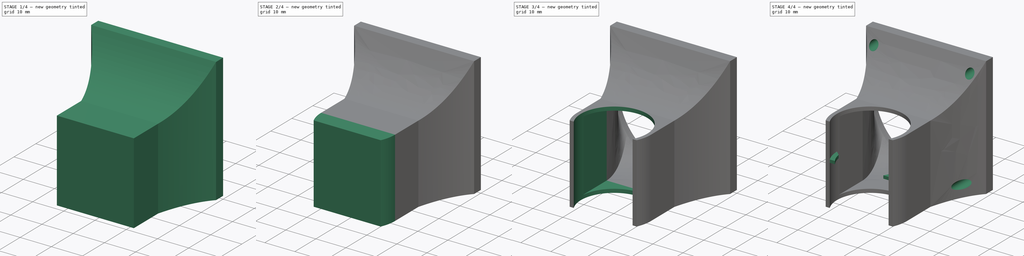
[diagram: build sequence overview — one tinted view per stage of 4, left to right]
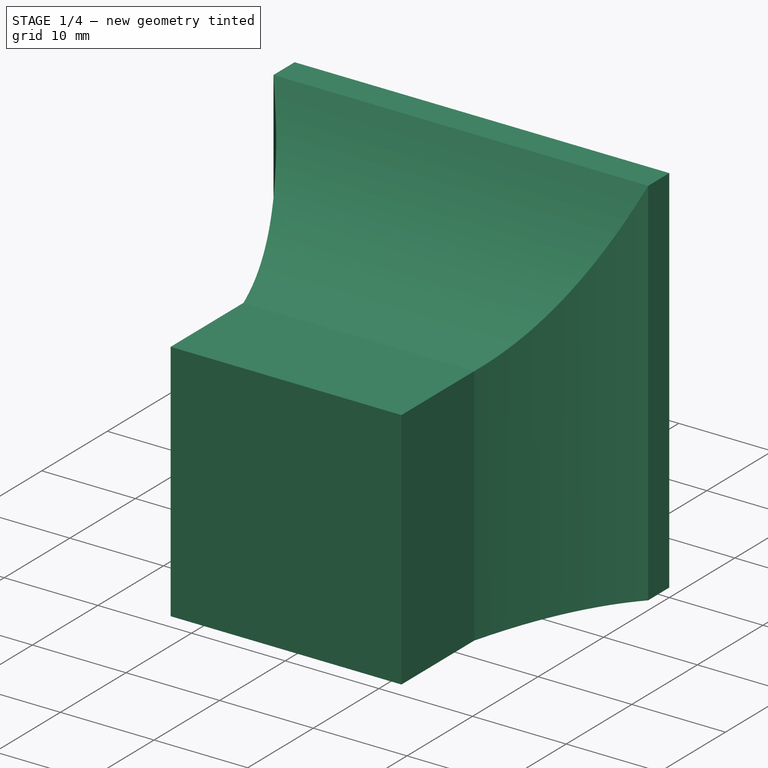
[diagram: stage 1 of 4 — iso view after this stage's code; geometry added in this stage tinted green]
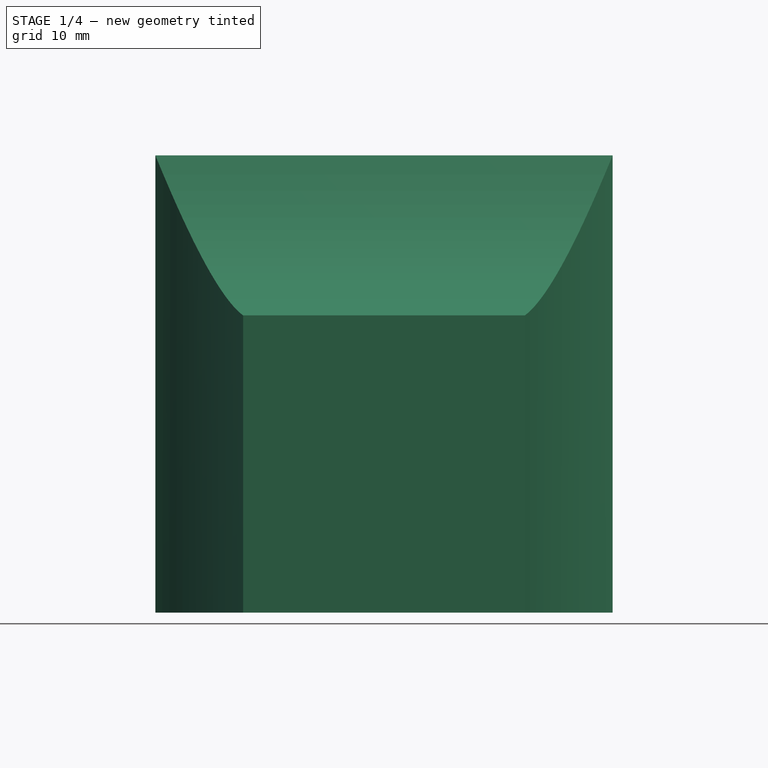
[diagram: stage 1 of 4 — front view after this stage's code; geometry added in this stage tinted green]
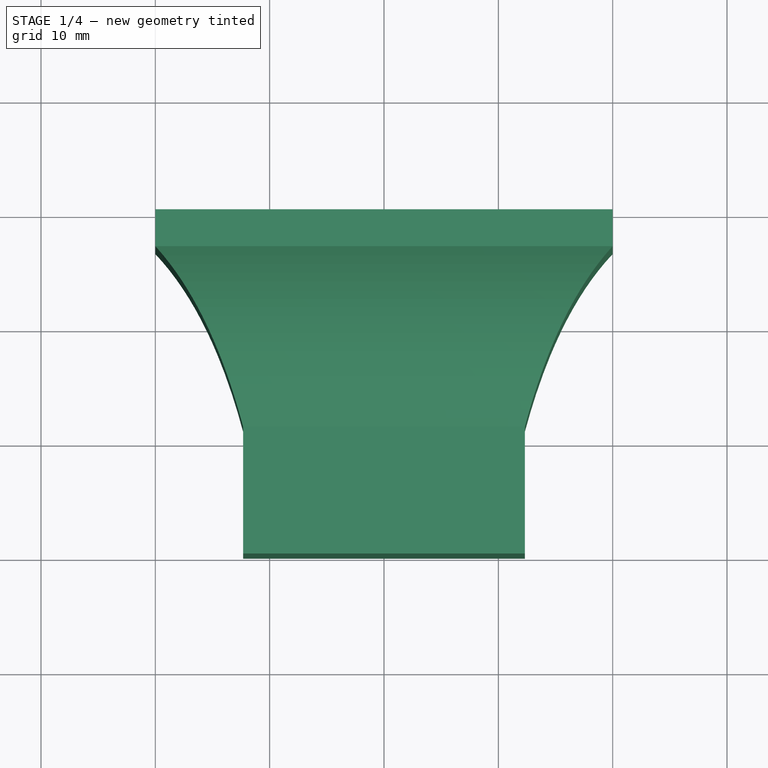
[diagram: stage 1 of 4 — top view after this stage's code; geometry added in this stage tinted green]
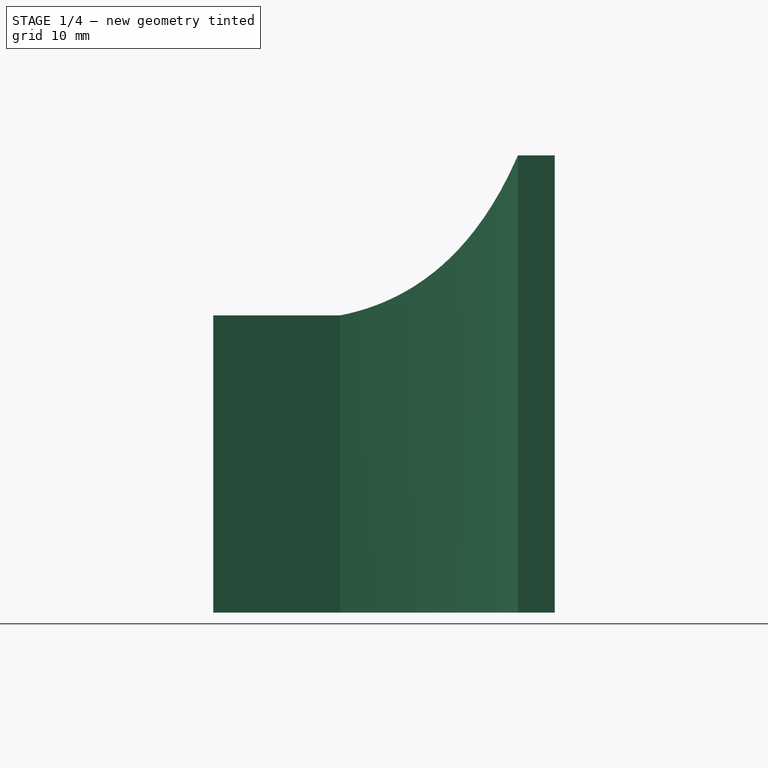
[diagram: stage 1 of 4 — right view after this stage's code; geometry added in this stage tinted green]
FCSTD DOCUMENT  (FreeCAD 0.17R13541 (Git))
Label: V6FanDuct1
License: All rights reserved
LicenseURL: http://en.wikipedia.org/wiki/All_rights_reserved
objects: Sketcher::SketchObject×15, PartDesign::Pad×4, PartDesign::Pocket×4, Spreadsheet::Sheet×1, PartDesign::AdditiveLoft×1, PartDesign::SubtractiveLoft×1, PartDesign::Chamfer×1, PartDesign::Body×1, App::Part×1
note: 37 computed .brp shape members not serialized (recipe doc carries the construction recipe); baked Part::Feature solids carry a one-line shape summary decoded from their .brp

FEATURE [Spreadsheet::Sheet] Spreadsheet
  cells = B2=ScrewDistance; C2(ScrewDistance)==32mm; B3=ScrewHoleRadius; C3(ScrewHoleRadius)==1.45mm; B4=InletRadius; C4(InletRadius)==19.300000000000001mm; B5=OuterBox; C5(OuterBox)==40mm; B6=FrameLength; C6(FrameLength)==2mm; B7=MiddleLength; C7(MiddleLength)==10mm; B8=HeatsinkRadius; C8(HeatsinkRadius)==11.1mm; B9=HeatsinkHeight; C9(HeatsinkHeight)==26mm; B10=WallThickness; C10(WallThickness)==1.22mm; B11=HeatSinkAngle; C11(HeatSinkAngle)=230; B12=ExtraLength; C12(ExtraLength)==0mm; B13=HorizontalOffset; C13(HorizontalOffset)==0mm
FEATURE [Sketcher::SketchObject] Sketch  label="OutsideInlet"
  MapMode = 5
  Placement = pos=(0,0,0) rot=(1,0,0;1.5708rad)
  Support = -> [XZ_Plane001]
  expr: Constraints[28] = Spreadsheet.OuterBox
  expr: Constraints[15] = Spreadsheet.ScrewHoleRadius
  expr: Constraints[10] = Spreadsheet.ScrewDistance
  expr: Constraints[34] = Spreadsheet.HorizontalOffset
  expr: Constraints[0] = Spreadsheet.InletRadius
  sketch-geometry (14):
    g0: Circle [constr] CenterX=0 CenterY=0 CenterZ=0 NormalX=0 NormalY=0 NormalZ=1 AngleXU=0 Radius=19.3
    g1: LineSegment [constr] StartX=-16 StartY=16 StartZ=0 EndX=16 EndY=16 EndZ=0
    g2: LineSegment [constr] StartX=16 StartY=16 StartZ=0 EndX=16 EndY=-16 EndZ=0
    g3: LineSegment [constr] StartX=16 StartY=-16 StartZ=0 EndX=-16 EndY=-16 EndZ=0
    g4: LineSegment [constr] StartX=-16 StartY=-16 StartZ=0 EndX=-16 EndY=16 EndZ=0
    g5: Circle [constr] CenterX=-16 CenterY=16 CenterZ=0 NormalX=0 NormalY=0 NormalZ=1 AngleXU=0 Radius=1.45
    g6: Circle [constr] CenterX=16 CenterY=16 CenterZ=0 NormalX=0 NormalY=0 NormalZ=1 AngleXU=0 Radius=1.45
    g7: Circle [constr] CenterX=16 CenterY=-16 CenterZ=0 NormalX=0 NormalY=0 NormalZ=1 AngleXU=0 Radius=1.45
    g8: Circle [constr] CenterX=-16 CenterY=-16 CenterZ=0 NormalX=0 NormalY=0 NormalZ=1 AngleXU=0 Radius=1.45
    g9: LineSegment StartX=-20 StartY=20 StartZ=0 EndX=20 EndY=20 EndZ=0
    g10: LineSegment StartX=20 StartY=20 StartZ=0 EndX=20 EndY=-20 EndZ=0
    g11: LineSegment StartX=20 StartY=-20 StartZ=0 EndX=-20 EndY=-20 EndZ=0
    g12: LineSegment StartX=-20 StartY=-20 StartZ=0 EndX=-20 EndY=20 EndZ=0
    g13: GeomPoint X=0 Y=0 Z=0
  constraints (35):
    c: Radius(g0) = 19.3
    c: Coincident(g1,g2)
    c: Coincident(g2,g3)
    c: Coincident(g3,g4)
    c: Coincident(g4,g1)
    c: Horizontal(g1)
    c: Horizontal(g3)
    c: Vertical(g2)
    c: Vertical(g4)
    c: Equal(g4,g3)
    c: DistanceX(g3,g3) = 32
    c: Coincident(g5,g1)
    c: Coincident(g6,g1)
    c: Coincident(g7,g2)
    c: Coincident(g8,g3)
    c: Radius(g5) = 1.45
    c: Equal(g5,g6)
    c: Equal(g6,g7)
    c: Equal(g7,g8)
    c: Coincident(g9,g10)
    c: Coincident(g10,g11)
    c: Coincident(g11,g12)
    c: Coincident(g12,g9)
    c: Horizontal(g9)
    c: Horizontal(g11)
    c: Vertical(g10)
    c: Vertical(g12)
    c: Equal(g11,g12)
    c: DistanceX(g11,g11) = 40
    c: DistanceY(g12,g12) = 40  'Height'
    c: Symmetric(g3,g1,g13)
    c: Symmetric(g11,g9,g13)
    c: Coincident(g0,g13)
    c: PointOnObject(g0,g-1)
    c: DistanceX(g-1,g0) = 0
FEATURE [Sketcher::SketchObject] Sketch001  label="OutsideMidle1"
  AttachmentOffset = pos=(0,0,3.22) rot=(0,0,1;0rad)
  MapMode = 5
  Placement = pos=(0,-3.22,0) rot=(1,0,0;1.5708rad)
  Support = -> [XZ_Plane001]
  expr: Constraints[28] = Spreadsheet.OuterBox
  expr: AttachmentOffset.Base.z = OutsideInlet.AttachmentOffset.Base.z + OutsideInlet_.Length
  expr: Constraints[33] = Spreadsheet.HorizontalOffset
  expr: Constraints[15] = Spreadsheet.ScrewHoleRadius
  expr: Constraints[10] = Spreadsheet.ScrewDistance
  expr: Constraints[0] = Spreadsheet.InletRadius
  sketch-geometry (14):
    g0: Circle [constr] CenterX=0 CenterY=0 CenterZ=0 NormalX=0 NormalY=0 NormalZ=1 AngleXU=0 Radius=19.3
    g1: LineSegment [constr] StartX=-16 StartY=16 StartZ=0 EndX=16 EndY=16 EndZ=0
    g2: LineSegment [constr] StartX=16 StartY=16 StartZ=0 EndX=16 EndY=-16 EndZ=0
    g3: LineSegment [constr] StartX=16 StartY=-16 StartZ=0 EndX=-16 EndY=-16 EndZ=0
    g4: LineSegment [constr] StartX=-16 StartY=-16 StartZ=0 EndX=-16 EndY=16 EndZ=0
    g5: Circle [constr] CenterX=-16 CenterY=16 CenterZ=0 NormalX=0 NormalY=0 NormalZ=1 AngleXU=0 Radius=1.45
    g6: Circle [constr] CenterX=16 CenterY=16 CenterZ=0 NormalX=0 NormalY=0 NormalZ=1 AngleXU=0 Radius=1.45
    g7: Circle [constr] CenterX=16 CenterY=-16 CenterZ=0 NormalX=0 NormalY=0 NormalZ=1 AngleXU=0 Radius=1.45
    g8: Circle [constr] CenterX=-16 CenterY=-16 CenterZ=0 NormalX=0 NormalY=0 NormalZ=1 AngleXU=0 Radius=1.45
    g9: LineSegment StartX=-20 StartY=20 StartZ=0 EndX=20 EndY=20 EndZ=0
    g10: LineSegment StartX=20 StartY=20 StartZ=0 EndX=20 EndY=-20 EndZ=0
    g11: LineSegment StartX=20 StartY=-20 StartZ=0 EndX=-20 EndY=-20 EndZ=0
    g12: LineSegment StartX=-20 StartY=-20 StartZ=0 EndX=-20 EndY=20 EndZ=0
    g13: GeomPoint X=0 Y=0 Z=0
  constraints (34):
    c: Radius(g0) = 19.3
    c: Coincident(g1,g2)
    c: Coincident(g2,g3)
    c: Coincident(g3,g4)
    c: Coincident(g4,g1)
    c: Horizontal(g1)
    c: Horizontal(g3)
    c: Vertical(g2)
    c: Vertical(g4)
    c: Equal(g4,g3)
    c: DistanceX(g3,g3) = 32
    c: Coincident(g5,g1)
    c: Coincident(g6,g1)
    c: Coincident(g7,g2)
    c: Coincident(g8,g3)
    c: Radius(g5) = 1.45
    c: Equal(g5,g6)
    c: Equal(g6,g7)
    c: Equal(g7,g8)
    c: Coincident(g9,g10)
    c: Coincident(g10,g11)
    c: Coincident(g11,g12)
    c: Coincident(g12,g9)
    c: Horizontal(g9)
    c: Horizontal(g11)
    c: Vertical(g10)
    c: Vertical(g12)
    c: Equal(g11,g12)
    c: DistanceX(g11,g11) = 40
    c: Symmetric(g3,g1,g13)
    c: Symmetric(g11,g9,g13)
    c: Coincident(g13,g0)
    c: PointOnObject(g0,g-1)
    c: DistanceX(g-1,g0) = 0
FEATURE [Sketcher::SketchObject] Sketch002  label="OutsideMidle2"
  AttachmentOffset = pos=(0,0,13.22) rot=(0,0,1;0rad)
  MapMode = 5
  Placement = pos=(0,-13.22,-1e-12) rot=(1,0,0;1.5708rad)
  Support = -> [XZ_Plane001]
  expr: Constraints[12] = (Sketch.Constraints.Height - Constraints.Height) / 2
  expr: Constraints.Height = Spreadsheet.HeatsinkHeight + 2mm
  expr: Constraints.Width = (Spreadsheet.HeatsinkRadius + 3mm) * 2
  expr: AttachmentOffset.Base.z = OutsideMidle1.AttachmentOffset.Base.z + Spreadsheet.MiddleLength
  sketch-geometry (5):
    g0: LineSegment StartX=-14.1 StartY=8 StartZ=0 EndX=14.1 EndY=8 EndZ=0
    g1: LineSegment StartX=14.1 StartY=8 StartZ=0 EndX=14.1 EndY=-20 EndZ=0
    g2: LineSegment StartX=14.1 StartY=-20 StartZ=0 EndX=-14.1 EndY=-20 EndZ=0
    g3: LineSegment StartX=-14.1 StartY=-20 StartZ=0 EndX=-14.1 EndY=8 EndZ=0
    g4: GeomPoint X=14.1 Y=-6 Z=0
  constraints (13):
    c: Coincident(g0,g1)
    c: Coincident(g1,g2)
    c: Coincident(g2,g3)
    c: Coincident(g3,g0)
    c: Horizontal(g0)
    c: Horizontal(g2)
    c: Vertical(g1)
    c: Vertical(g3)
    c: Symmetric(g0,g0,g-2)
    c: DistanceX(g2,g2) = 28.2  'Width'
    c: DistanceY(g3,g3) = 28  'Height'
    c: Symmetric(g0,g1,g4)
    c: DistanceY(g4,g-1) = 6
FEATURE [Sketcher::SketchObject] Sketch004  label="OutsideHeatsink"
  AttachmentOffset = pos=(0,0,-20) rot=(0,0,1;0rad)
  MapMode = 5
  Placement = pos=(0,0,-20) rot=(0,0,1;0rad)
  Support = -> [XY_Plane001]
  expr: Constraints[0] = Spreadsheet.HeatSinkAngle
  expr: Constraints.Offset = OutsideOutlet.AttachmentOffset.Base.z + OutsideOutlet_.Length
  expr: Constraints.R = Spreadsheet.HeatsinkRadius + Spreadsheet.WallThickness
  expr: AttachmentOffset.Base.z = -Sketch.Constraints.Height / 2
  sketch-geometry (2):
    g0: ArcOfCircle CenterX=0 CenterY=-29.87 CenterZ=0 NormalX=0 NormalY=0 NormalZ=1 AngleXU=0 Radius=12.32 StartAngle=5.84685 EndAngle=9.86111
    g1: LineSegment StartX=-11.1657 StartY=-35.0767 StartZ=0 EndX=11.1657 EndY=-35.0767 EndZ=0
  constraints (7):
    c: Angle(g0) = 4.01426
    c: Radius(g0) = 12.32  'R'
    c: DistanceY(g0,g-1) = 29.87  'Offset'
    c: Coincident(g1,g0)
    c: Coincident(g1,g0)
    c: Horizontal(g1)
    c: PointOnObject(g0,g-2)
FEATURE [Sketcher::SketchObject] Sketch005  label="InsideMidle1"
  AttachmentOffset = pos=(0,0,2) rot=(0,0,1;0rad)
  MapMode = 5
  Placement = pos=(0,-2,0) rot=(1,0,0;1.5708rad)
  Support = -> [XZ_Plane001]
  expr: Constraints[57] = Spreadsheet.HorizontalOffset
  expr: Constraints.R = Sketch006.Constraints.R
  expr: Constraints[9] = Spreadsheet.ScrewDistance
  expr: Constraints[27] = Spreadsheet.OuterBox
  expr: Constraints[14] = Spreadsheet.ScrewHoleRadius
  expr: AttachmentOffset.Base.z = InsideInlet.AttachmentOffset.Base.z + InsideInlet_.Length
  sketch-geometry (23):
    g0: LineSegment [constr] StartX=-16 StartY=16 StartZ=0 EndX=16 EndY=16 EndZ=0
    g1: LineSegment [constr] StartX=16 StartY=16 StartZ=0 EndX=16 EndY=-16 EndZ=0
    g2: LineSegment [constr] StartX=16 StartY=-16 StartZ=0 EndX=-16 EndY=-16 EndZ=0
    g3: LineSegment [constr] StartX=-16 StartY=-16 StartZ=0 EndX=-16 EndY=16 EndZ=0
    g4: Circle [constr] CenterX=-16 CenterY=16 CenterZ=0 NormalX=0 NormalY=0 NormalZ=1 AngleXU=0 Radius=1.45
    g5: Circle [constr] CenterX=16 CenterY=16 CenterZ=0 NormalX=0 NormalY=0 NormalZ=1 AngleXU=0 Radius=1.45
    g6: Circle [constr] CenterX=16 CenterY=-16 CenterZ=0 NormalX=0 NormalY=0 NormalZ=1 AngleXU=0 Radius=1.45
    g7: Circle [constr] CenterX=-16 CenterY=-16 CenterZ=0 NormalX=0 NormalY=0 NormalZ=1 AngleXU=0 Radius=1.45
    g8: LineSegment [constr] StartX=-20 StartY=20 StartZ=0 EndX=20 EndY=20 EndZ=0
    g9: LineSegment [constr] StartX=20 StartY=20 StartZ=0 EndX=20 EndY=-20 EndZ=0
    g10: LineSegment [constr] StartX=20 StartY=-20 StartZ=0 EndX=-20 EndY=-20 EndZ=0
    g11: LineSegment [constr] StartX=-20 StartY=-20 StartZ=0 EndX=-20 EndY=20 EndZ=0
    g12: ArcOfCircle CenterX=0 CenterY=0 CenterZ=0 NormalX=0 NormalY=0 NormalZ=1 AngleXU=0 Radius=19.3 StartAngle=0.654498 EndAngle=2.48709
    g13: ArcOfCircle CenterX=0 CenterY=0 CenterZ=0 NormalX=0 NormalY=0 NormalZ=1 AngleXU=0 Radius=19.3 StartAngle=5.62869 EndAngle=6.93768
    g14: ArcOfCircle CenterX=0 CenterY=0 CenterZ=0 NormalX=0 NormalY=0 NormalZ=1 AngleXU=0 Radius=19.3 StartAngle=3.79609 EndAngle=5.62869
    g15: ArcOfCircle CenterX=0 CenterY=0 CenterZ=0 NormalX=0 NormalY=0 NormalZ=1 AngleXU=0 Radius=19.3 StartAngle=2.48709 EndAngle=3.79609
    g16: LineSegment [constr] StartX=-15.3117 StartY=-11.7491 StartZ=0 EndX=15.3117 EndY=11.7491 EndZ=0
    g17: LineSegment [constr] StartX=-15.3117 StartY=11.7491 StartZ=0 EndX=15.3117 EndY=-11.7491 EndZ=0
    g18: LineSegment [constr] StartX=-15.3117 StartY=11.7491 StartZ=0 EndX=15.3117 EndY=11.7491 EndZ=0
    g19: LineSegment [constr] StartX=-15.3117 StartY=11.7491 StartZ=0 EndX=-15.3117 EndY=-11.7491 EndZ=0
    g20: LineSegment [constr] StartX=-15.3117 StartY=-11.7491 StartZ=0 EndX=15.3117 EndY=-11.7491 EndZ=0
    g21: LineSegment [constr] StartX=15.3117 StartY=-11.7491 StartZ=0 EndX=15.3117 EndY=11.7491 EndZ=0
    g22: GeomPoint X=0 Y=0 Z=0
  constraints (58):
    c: Coincident(g0,g1)
    c: Coincident(g1,g2)
    c: Coincident(g2,g3)
    c: Coincident(g3,g0)
    c: Horizontal(g0)
    c: Horizontal(g2)
    c: Vertical(g1)
    c: Vertical(g3)
    c: Equal(g3,g2)
    c: DistanceX(g2,g2) = 32
    c: Coincident(g4,g0)
    c: Coincident(g5,g0)
    c: Coincident(g6,g1)
    c: Coincident(g7,g2)
    c: Radius(g4) = 1.45
    c: Equal(g4,g5)
    c: Equal(g5,g6)
    c: Equal(g6,g7)
    c: Coincident(g8,g9)
    c: Coincident(g9,g10)
    c: Coincident(g10,g11)
    c: Coincident(g11,g8)
    c: Horizontal(g8)
    c: Horizontal(g10)
    c: Vertical(g9)
    c: Vertical(g11)
    c: Equal(g10,g11)
    c: DistanceX(g10,g10) = 40
    c: DistanceY(g11,g11) = 40  'Height'
    c: Radius(g12) = 19.3  'R'
    c: Coincident(g16,g14)
    c: Coincident(g16,g12)
    c: Coincident(g17,g12)
    c: Coincident(g17,g13)
    c: Coincident(g18,g12)
    c: Coincident(g18,g12)
    c: Horizontal(g18)
    c: Coincident(g12,g13)
    c: Coincident(g12,g14)
    c: Coincident(g12,g15)
    c: Coincident(g12,g15)
    c: Coincident(g14,g15)
    c: Coincident(g13,g14)
    c: Coincident(g12,g13)
    c: Coincident(g19,g12)
    c: Coincident(g19,g14)
    c: Coincident(g20,g14)
    c: Coincident(g20,g13)
    c: Coincident(g21,g13)
    c: Coincident(g21,g12)
    c: Angle(g16,g17) = 1.8326
    c: PointOnObject(g12,g16)
    c: PointOnObject(g12,g17)
    c: Symmetric(g2,g0,g22)
    c: Symmetric(g10,g8,g22)
    c: Coincident(g12,g22)
    c: PointOnObject(g12,g-1)
    c: DistanceX(g-1,g12) = 0
FEATURE [Sketcher::SketchObject] Sketch006  label="InsideInlet"
  MapMode = 5
  Placement = pos=(0,0,0) rot=(1,0,0;1.5708rad)
  Support = -> [XZ_Plane001]
  expr: Constraints[34] = Spreadsheet.HorizontalOffset
  expr: Constraints.R = Spreadsheet.InletRadius
  expr: Constraints[9] = Spreadsheet.ScrewDistance
  expr: Constraints[14] = Spreadsheet.ScrewHoleRadius
  expr: Constraints[27] = Spreadsheet.OuterBox
  sketch-geometry (14):
    g0: LineSegment [constr] StartX=-16 StartY=16 StartZ=0 EndX=16 EndY=16 EndZ=0
    g1: LineSegment [constr] StartX=16 StartY=16 StartZ=0 EndX=16 EndY=-16 EndZ=0
    g2: LineSegment [constr] StartX=16 StartY=-16 StartZ=0 EndX=-16 EndY=-16 EndZ=0
    g3: LineSegment [constr] StartX=-16 StartY=-16 StartZ=0 EndX=-16 EndY=16 EndZ=0
    g4: Circle [constr] CenterX=-16 CenterY=16 CenterZ=0 NormalX=0 NormalY=0 NormalZ=1 AngleXU=0 Radius=1.45
    g5: Circle [constr] CenterX=16 CenterY=16 CenterZ=0 NormalX=0 NormalY=0 NormalZ=1 AngleXU=0 Radius=1.45
    g6: Circle [constr] CenterX=16 CenterY=-16 CenterZ=0 NormalX=0 NormalY=0 NormalZ=1 AngleXU=0 Radius=1.45
    g7: Circle [constr] CenterX=-16 CenterY=-16 CenterZ=0 NormalX=0 NormalY=0 NormalZ=1 AngleXU=0 Radius=1.45
    g8: LineSegment [constr] StartX=-20 StartY=20 StartZ=0 EndX=20 EndY=20 EndZ=0
    g9: LineSegment [constr] StartX=20 StartY=20 StartZ=0 EndX=20 EndY=-20 EndZ=0
    g10: LineSegment [constr] StartX=20 StartY=-20 StartZ=0 EndX=-20 EndY=-20 EndZ=0
    g11: LineSegment [constr] StartX=-20 StartY=-20 StartZ=0 EndX=-20 EndY=20 EndZ=0
    g12: Circle CenterX=0 CenterY=0 CenterZ=0 NormalX=0 NormalY=0 NormalZ=1 AngleXU=0 Radius=19.3
    g13: GeomPoint X=0 Y=0 Z=0
  constraints (35):
    c: Coincident(g0,g1)
    c: Coincident(g1,g2)
    c: Coincident(g2,g3)
    c: Coincident(g3,g0)
    c: Horizontal(g0)
    c: Horizontal(g2)
    c: Vertical(g1)
    c: Vertical(g3)
    c: Equal(g3,g2)
    c: DistanceX(g2,g2) = 32
    c: Coincident(g4,g0)
    c: Coincident(g5,g0)
    c: Coincident(g6,g1)
    c: Coincident(g7,g2)
    c: Radius(g4) = 1.45
    c: Equal(g4,g5)
    c: Equal(g5,g6)
    c: Equal(g6,g7)
    c: Coincident(g8,g9)
    c: Coincident(g9,g10)
    c: Coincident(g10,g11)
    c: Coincident(g11,g8)
    c: Horizontal(g8)
    c: Horizontal(g10)
    c: Vertical(g9)
    c: Vertical(g11)
    c: Equal(g10,g11)
    c: DistanceX(g10,g10) = 40
    c: DistanceY(g11,g11) = 40  'Height'
    c: Radius(g12) = 19.3  'R'
    c: Symmetric(g0,g2,g13)
    c: Symmetric(g10,g8,g13)
    c: Coincident(g12,g13)
    c: PointOnObject(g12,g-1)
    c: DistanceX(g-1,g12) = 0
FEATURE [Sketcher::SketchObject] Sketch007  label="InsideInlet001"
  MapMode = 5
  Placement = pos=(0,0,0) rot=(1,0,0;1.5708rad)
  expr: Constraints[30] = Spreadsheet.OuterBox
  expr: Constraints[17] = Spreadsheet.ScrewHoleRadius
  expr: Constraints[12] = Spreadsheet.ScrewDistance
  expr: Constraints[1] = Spreadsheet.InletRadius
  sketch-geometry (13):
    g0: Circle [constr] CenterX=0 CenterY=0 CenterZ=0 NormalX=0 NormalY=0 NormalZ=1 AngleXU=0 Radius=19.3
    g1: LineSegment [constr] StartX=-16 StartY=16 StartZ=0 EndX=16 EndY=16 EndZ=0
    g2: LineSegment [constr] StartX=16 StartY=16 StartZ=0 EndX=16 EndY=-16 EndZ=0
    g3: LineSegment [constr] StartX=16 StartY=-16 StartZ=0 EndX=-16 EndY=-16 EndZ=0
    g4: LineSegment [constr] StartX=-16 StartY=-16 StartZ=0 EndX=-16 EndY=16 EndZ=0
    g5: Circle [constr] CenterX=-16 CenterY=16 CenterZ=0 NormalX=0 NormalY=0 NormalZ=1 AngleXU=0 Radius=1.45
    g6: Circle [constr] CenterX=16 CenterY=16 CenterZ=0 NormalX=0 NormalY=0 NormalZ=1 AngleXU=0 Radius=1.45
    g7: Circle [constr] CenterX=16 CenterY=-16 CenterZ=0 NormalX=0 NormalY=0 NormalZ=1 AngleXU=0 Radius=1.45
    g8: Circle [constr] CenterX=-16 CenterY=-16 CenterZ=0 NormalX=0 NormalY=0 NormalZ=1 AngleXU=0 Radius=1.45
    g9: LineSegment StartX=-20 StartY=20 StartZ=0 EndX=20 EndY=20 EndZ=0
    g10: LineSegment StartX=20 StartY=20 StartZ=0 EndX=20 EndY=-20 EndZ=0
    g11: LineSegment StartX=20 StartY=-20 StartZ=0 EndX=-20 EndY=-20 EndZ=0
    g12: LineSegment StartX=-20 StartY=-20 StartZ=0 EndX=-20 EndY=20 EndZ=0
  constraints (33):
    c: Coincident(g0,g-1)
    c: Radius(g0) = 19.3
    c: Coincident(g1,g2)
    c: Coincident(g2,g3)
    c: Coincident(g3,g4)
    c: Coincident(g4,g1)
    c: Horizontal(g1)
    c: Horizontal(g3)
    c: Vertical(g2)
    c: Vertical(g4)
    c: Equal(g4,g3)
    c: Symmetric(g3,g1,g-1)
    c: DistanceX(g3,g3) = 32
    c: Coincident(g5,g1)
    c: Coincident(g6,g1)
    c: Coincident(g7,g2)
    c: Coincident(g8,g3)
    c: Radius(g5) = 1.45
    c: Equal(g5,g6)
    c: Equal(g6,g7)
    c: Equal(g7,g8)
    c: Coincident(g9,g10)
    c: Coincident(g10,g11)
    c: Coincident(g11,g12)
    c: Coincident(g12,g9)
    c: Horizontal(g9)
    c: Horizontal(g11)
    c: Vertical(g10)
    c: Vertical(g12)
    c: Equal(g11,g12)
    c: DistanceX(g11,g11) = 40
    c: Symmetric(g11,g9,g-1)
    c: DistanceY(g12,g12) = 40  'Height'
FEATURE [Sketcher::SketchObject] Sketch009  label="InsideMidle4"
  AttachmentOffset = pos=(0,0,17.55) rot=(0,0,1;0rad)
  MapMode = 5
  Placement = pos=(0,-17.55,-2e-12) rot=(1,0,0;1.5708rad)
  Support = -> [XZ_Plane001]
  expr: Constraints[12] = Spreadsheet.HeatsinkRadius * 2
  expr: Constraints[11] = (Sketch.Constraints.Height - Constraints.Height) / 2 - Spreadsheet.WallThickness
  expr: Constraints.Height = Spreadsheet.HeatsinkHeight - Spreadsheet.WallThickness * 2
  expr: AttachmentOffset.Base.z = InsideMidle3.AttachmentOffset.Base.z + Spreadsheet.HeatsinkRadius / 2
  sketch-geometry (5):
    g0: LineSegment StartX=-11.1 StartY=4.78 StartZ=0 EndX=11.1 EndY=4.78 EndZ=0
    g1: LineSegment StartX=11.1 StartY=4.78 StartZ=0 EndX=11.1 EndY=-18.78 EndZ=0
    g2: LineSegment StartX=11.1 StartY=-18.78 StartZ=0 EndX=-11.1 EndY=-18.78 EndZ=0
    g3: LineSegment StartX=-11.1 StartY=-18.78 StartZ=0 EndX=-11.1 EndY=4.78 EndZ=0
    g4: GeomPoint X=11.1 Y=-7 Z=0
  constraints (13):
    c: Coincident(g0,g1)
    c: Coincident(g1,g2)
    c: Coincident(g2,g3)
    c: Coincident(g3,g0)
    c: Horizontal(g0)
    c: Horizontal(g2)
    c: Vertical(g1)
    c: Vertical(g3)
    c: Symmetric(g0,g0,g-2)
    c: DistanceY(g3,g3) = 23.56  'Height'
    c: Symmetric(g0,g1,g4)
    c: DistanceY(g4,g-1) = 7
    c: DistanceX(g2,g2) = 22.2
FEATURE [Sketcher::SketchObject] Sketch010  label="InsideHeatsink"
  AttachmentOffset = pos=(0,0,-20) rot=(0,0,1;0rad)
  MapMode = 5
  Placement = pos=(0,0,-20) rot=(0,0,1;0rad)
  Support = -> [XY_Plane001]
  expr: Constraints[1] = OutsideHeatsink.Constraints.Offset
  expr: Constraints[0] = Spreadsheet.HeatsinkRadius
  expr: AttachmentOffset.Base.z = -Sketch.Constraints.Height / 2
  sketch-geometry (1):
    g0: Circle CenterX=0 CenterY=-29.87 CenterZ=0 NormalX=0 NormalY=0 NormalZ=1 AngleXU=0 Radius=11.1
  constraints (3):
    c: Radius(g0) = 11.1
    c: DistanceY(g0,g-1) = 29.87
    c: PointOnObject(g0,g-2)
FEATURE [Sketcher::SketchObject] Sketch011  label="ScrewHoles"
  MapMode = 5
  Placement = pos=(0,0,0) rot=(1,0,0;1.5708rad)
  Support = -> [XZ_Plane001]
  expr: Constraints[28] = Spreadsheet.OuterBox
  expr: Constraints[15] = Spreadsheet.ScrewHoleRadius
  expr: Constraints[10] = Spreadsheet.ScrewDistance
  expr: Constraints[34] = Spreadsheet.HorizontalOffset
  expr: Constraints[0] = Spreadsheet.InletRadius
  sketch-geometry (14):
    g0: Circle [constr] CenterX=0 CenterY=0 CenterZ=0 NormalX=0 NormalY=0 NormalZ=1 AngleXU=0 Radius=19.3
    g1: LineSegment [constr] StartX=-16 StartY=16 StartZ=0 EndX=16 EndY=16 EndZ=0
    g2: LineSegment [constr] StartX=16 StartY=16 StartZ=0 EndX=16 EndY=-16 EndZ=0
    g3: LineSegment [constr] StartX=16 StartY=-16 StartZ=0 EndX=-16 EndY=-16 EndZ=0
    g4: LineSegment [constr] StartX=-16 StartY=-16 StartZ=0 EndX=-16 EndY=16 EndZ=0
    g5: Circle CenterX=-16 CenterY=16 CenterZ=0 NormalX=0 NormalY=0 NormalZ=1 AngleXU=0 Radius=1.45
    g6: Circle CenterX=16 CenterY=16 CenterZ=0 NormalX=0 NormalY=0 NormalZ=1 AngleXU=0 Radius=1.45
    g7: Circle CenterX=16 CenterY=-16 CenterZ=0 NormalX=0 NormalY=0 NormalZ=1 AngleXU=0 Radius=1.45
    g8: Circle CenterX=-16 CenterY=-16 CenterZ=0 NormalX=0 NormalY=0 NormalZ=1 AngleXU=0 Radius=1.45
    g9: LineSegment [constr] StartX=-20 StartY=20 StartZ=0 EndX=20 EndY=20 EndZ=0
    g10: LineSegment [constr] StartX=20 StartY=20 StartZ=0 EndX=20 EndY=-20 EndZ=0
    g11: LineSegment [constr] StartX=20 StartY=-20 StartZ=0 EndX=-20 EndY=-20 EndZ=0
    g12: LineSegment [constr] StartX=-20 StartY=-20 StartZ=0 EndX=-20 EndY=20 EndZ=0
    g13: GeomPoint X=0 Y=0 Z=0
  constraints (35):
    c: Radius(g0) = 19.3
    c: Coincident(g1,g2)
    c: Coincident(g2,g3)
    c: Coincident(g3,g4)
    c: Coincident(g4,g1)
    c: Horizontal(g1)
    c: Horizontal(g3)
    c: Vertical(g2)
    c: Vertical(g4)
    c: Equal(g4,g3)
    c: DistanceX(g3,g3) = 32
    c: Coincident(g5,g1)
    c: Coincident(g6,g1)
    c: Coincident(g7,g2)
    c: Coincident(g8,g3)
    c: Radius(g5) = 1.45
    c: Equal(g5,g6)
    c: Equal(g6,g7)
    c: Equal(g7,g8)
    c: Coincident(g9,g10)
    c: Coincident(g10,g11)
    c: Coincident(g11,g12)
    c: Coincident(g12,g9)
    c: Horizontal(g9)
    c: Horizontal(g11)
    c: Vertical(g10)
    c: Vertical(g12)
    c: Equal(g11,g12)
    c: DistanceX(g11,g11) = 40
    c: DistanceY(g12,g12) = 40  'Height'
    c: Symmetric(g1,g3,g13)
    c: Symmetric(g9,g11,g13)
    c: Coincident(g0,g13)
    c: PointOnObject(g0,g-1)
    c: DistanceX(g-1,g0) = 0
FEATURE [Sketcher::SketchObject] Sketch012  label="Grooves"
  AttachmentOffset = pos=(0,0,-6.4) rot=(0,0,1;0rad)
  MapMode = 5
  Placement = pos=(0,0,-6.4) rot=(0,0,1;0rad)
  Support = -> [XY_Plane001]
  expr: Constraints[25] = 360 - Spreadsheet.HeatSinkAngle
  expr: Constraints[4] = Constraints.R - 1.6000000000000001mm
  expr: Constraints[24] = OutsideHeatsink.Constraints.R
  expr: AttachmentOffset.Base.z = OutsideHeatsink.AttachmentOffset.Base.z + OutsideHeatsink_.Length / 2 + 0.59999999999999998mm
  expr: Constraints[1] = OutsideHeatsink.Constraints.Offset
  expr: Constraints.R = Spreadsheet.HeatsinkRadius + 0.10000000000000001mm
  sketch-geometry (11):
    g0: ArcOfCircle CenterX=0 CenterY=-29.87 CenterZ=0 NormalX=0 NormalY=0 NormalZ=1 AngleXU=0 Radius=11.2 StartAngle=3.14159 EndAngle=3.62509
    g1: ArcOfCircle CenterX=0 CenterY=-29.87 CenterZ=0 NormalX=0 NormalY=0 NormalZ=1 AngleXU=0 Radius=9.6 StartAngle=3.14159 EndAngle=3.71484
    g2: LineSegment StartX=-9.91618 StartY=-35.0767 StartZ=0 EndX=-8.0654 EndY=-35.0767 EndZ=0
    g3: LineSegment StartX=8.0654 StartY=-35.0767 StartZ=0 EndX=9.91618 EndY=-35.0767 EndZ=0
    g4: LineSegment [constr] StartX=-9.6 StartY=-29.87 StartZ=0 EndX=9.6 EndY=-29.87 EndZ=0
    g5: LineSegment StartX=-11.2 StartY=-29.87 StartZ=0 EndX=-9.6 EndY=-29.87 EndZ=0
    g6: ArcOfCircle CenterX=0 CenterY=-29.87 CenterZ=0 NormalX=0 NormalY=0 NormalZ=1 AngleXU=0 Radius=9.6 StartAngle=5.70994 EndAngle=6.28319
    g7: LineSegment StartX=9.6 StartY=-29.87 StartZ=0 EndX=11.2 EndY=-29.87 EndZ=0
    g8: ArcOfCircle CenterX=0 CenterY=-29.87 CenterZ=0 NormalX=0 NormalY=0 NormalZ=1 AngleXU=0 Radius=11.2 StartAngle=5.79969 EndAngle=6.28319
    g9: ArcOfCircle [constr] CenterX=0 CenterY=-29.87 CenterZ=0 NormalX=0 NormalY=0 NormalZ=1 AngleXU=0 Radius=12.32 StartAngle=3.57792 EndAngle=5.84685
    g10: LineSegment [constr] StartX=-11.1657 StartY=-35.0767 StartZ=0 EndX=11.1657 EndY=-35.0767 EndZ=0
  constraints (33):
    c: Radius(g0) = 11.2  'R'
    c: DistanceY(g0,g-1) = 29.87
    c: PointOnObject(g0,g-2)
    c: Coincident(g1,g0)
    c: Radius(g1) = 9.6
    c: Coincident(g2,g0)
    c: Coincident(g1,g2)
    c: Coincident(g4,g1)
    c: Horizontal(g4)
    c: Symmetric(g1,g4,g0)
    c: Coincident(g5,g0)
    c: Coincident(g5,g1)
    c: Horizontal(g5)
    c: Coincident(g6,g0)
    c: Coincident(g6,g3)
    c: Coincident(g6,g4)
    c: Coincident(g7,g4)
    c: Horizontal(g7)
    c: Coincident(g8,g0)
    c: Coincident(g8,g3)
    c: Coincident(g8,g7)
    c: Equal(g8,g0)
    c: Coincident(g9,g0)
    c: Symmetric(g9,g9,g-2)
    c: Radius(g9) = 12.32
    c: Angle(g9) = 2.26893
    c: Coincident(g10,g9)
    c: Coincident(g10,g9)
    c: Horizontal(g10)
    c: PointOnObject(g0,g10)
    c: PointOnObject(g3,g10)
    c: Horizontal(g2)
    c: Horizontal(g3)
FEATURE [Sketcher::SketchObject] Sketch013  label="InsideMidle3"
  AttachmentOffset = pos=(0,0,12) rot=(0,0,1;0rad)
  MapMode = 5
  Placement = pos=(0,-12,-1e-12) rot=(1,0,0;1.5708rad)
  Support = -> [XZ_Plane001]
  expr: Constraints[12] = (Sketch.Constraints.Height - Constraints.Height) / 2 - Spreadsheet.WallThickness
  expr: Constraints.Height = OutsideMidle2.Constraints.Height * 0.88
  expr: Constraints[9] = Spreadsheet.HeatsinkRadius * 2 + Spreadsheet.WallThickness * 2
  expr: AttachmentOffset.Base.z = InsideMidle1.AttachmentOffset.Base.z + Spreadsheet.MiddleLength
  sketch-geometry (5):
    g0: LineSegment StartX=-12.32 StartY=5.86 StartZ=0 EndX=12.32 EndY=5.86 EndZ=0
    g1: LineSegment StartX=12.32 StartY=5.86 StartZ=0 EndX=12.32 EndY=-18.78 EndZ=0
    g2: LineSegment StartX=12.32 StartY=-18.78 StartZ=0 EndX=-12.32 EndY=-18.78 EndZ=0
    g3: LineSegment StartX=-12.32 StartY=-18.78 StartZ=0 EndX=-12.32 EndY=5.86 EndZ=0
    g4: GeomPoint X=12.32 Y=-6.46 Z=0
  constraints (13):
    c: Coincident(g0,g1)
    c: Coincident(g1,g2)
    c: Coincident(g2,g3)
    c: Coincident(g3,g0)
    c: Horizontal(g0)
    c: Horizontal(g2)
    c: Vertical(g1)
    c: Vertical(g3)
    c: Symmetric(g0,g0,g-2)
    c: DistanceX(g2,g2) = 24.64
    c: DistanceY(g3,g3) = 24.64  'Height'
    c: Symmetric(g0,g1,g4)
    c: DistanceY(g4,g-1) = 6.46
FEATURE [Sketcher::SketchObject] Sketch015  label="OutsideMidle3"
  AttachmentOffset = pos=(0,0,18.77) rot=(0,0,1;0rad)
  MapMode = 5
  Placement = pos=(0,-18.77,-2e-12) rot=(1,0,0;1.5708rad)
  Support = -> [XZ_Plane001]
  expr: Constraints[12] = (Sketch.Constraints.Height - Constraints.Height) / 2
  expr: Constraints.Height = Spreadsheet.HeatsinkHeight
  expr: Constraints[10] = (Spreadsheet.HeatsinkRadius + Spreadsheet.WallThickness) * 2
  expr: AttachmentOffset.Base.z = OutsideMidle2.AttachmentOffset.Base.z + Spreadsheet.HeatsinkRadius / 2
  sketch-geometry (5):
    g0: LineSegment StartX=-12.32 StartY=6 StartZ=0 EndX=12.32 EndY=6 EndZ=0
    g1: LineSegment StartX=12.32 StartY=6 StartZ=0 EndX=12.32 EndY=-20 EndZ=0
    g2: LineSegment StartX=12.32 StartY=-20 StartZ=0 EndX=-12.32 EndY=-20 EndZ=0
    g3: LineSegment StartX=-12.32 StartY=-20 StartZ=0 EndX=-12.32 EndY=6 EndZ=0
    g4: GeomPoint X=12.32 Y=-7 Z=0
  constraints (13):
    c: Coincident(g0,g1)
    c: Coincident(g1,g2)
    c: Coincident(g2,g3)
    c: Coincident(g3,g0)
    c: Horizontal(g0)
    c: Horizontal(g2)
    c: Vertical(g1)
    c: Vertical(g3)
    c: Symmetric(g0,g0,g-2)
    c: Symmetric(g0,g1,g4)
    c: DistanceX(g2,g2) = 24.64
    c: DistanceY(g3,g3) = 26  'Height'
    c: DistanceY(g4,g-1) = 7
FEATURE [Sketcher::SketchObject] Sketch003  label="OutsideOutlet"
  AttachmentOffset = pos=(0,0,18.77) rot=(0,0,1;0rad)
  MapMode = 5
  Placement = pos=(0,-18.77,-2e-12) rot=(1,0,0;1.5708rad)
  Support = -> [XZ_Plane001]
  expr: Constraints[12] = (Sketch.Constraints.Height - Constraints.Height) / 2
  expr: Constraints.Height = Spreadsheet.HeatsinkHeight
  expr: Constraints[10] = (Spreadsheet.HeatsinkRadius + Spreadsheet.WallThickness) * 2
  expr: AttachmentOffset.Base.z = OutsideMidle3.AttachmentOffset.Base.z
  sketch-geometry (5):
    g0: LineSegment StartX=-12.32 StartY=6 StartZ=0 EndX=12.32 EndY=6 EndZ=0
    g1: LineSegment StartX=12.32 StartY=6 StartZ=0 EndX=12.32 EndY=-20 EndZ=0
    g2: LineSegment StartX=12.32 StartY=-20 StartZ=0 EndX=-12.32 EndY=-20 EndZ=0
    g3: LineSegment StartX=-12.32 StartY=-20 StartZ=0 EndX=-12.32 EndY=6 EndZ=0
    g4: GeomPoint X=12.32 Y=-7 Z=0
  constraints (13):
    c: Coincident(g0,g1)
    c: Coincident(g1,g2)
    c: Coincident(g2,g3)
    c: Coincident(g3,g0)
    c: Horizontal(g0)
    c: Horizontal(g2)
    c: Vertical(g1)
    c: Vertical(g3)
    c: Symmetric(g0,g0,g-2)
    c: Symmetric(g0,g1,g4)
    c: DistanceX(g2,g2) = 24.64
    c: DistanceY(g3,g3) = 26  'Height'
    c: DistanceY(g4,g-1) = 7
FEATURE [Sketcher::SketchObject] Sketch017  label="InsideOutlet"
  AttachmentOffset = pos=(0,0,17.55) rot=(0,0,1;0rad)
  MapMode = 5
  Placement = pos=(0,-17.55,-2e-12) rot=(1,0,0;1.5708rad)
  Support = -> [XZ_Plane001]
  expr: Constraints[12] = Spreadsheet.HeatsinkRadius * 2
  expr: Constraints[11] = (Sketch.Constraints.Height - Constraints.Height) / 2 - Spreadsheet.WallThickness
  expr: Constraints.Height = Spreadsheet.HeatsinkHeight - Spreadsheet.WallThickness * 2
  expr: AttachmentOffset.Base.z = InsideMidle4.AttachmentOffset.Base.z
  sketch-geometry (5):
    g0: LineSegment StartX=-11.1 StartY=4.78 StartZ=0 EndX=11.1 EndY=4.78 EndZ=0
    g1: LineSegment StartX=11.1 StartY=4.78 StartZ=0 EndX=11.1 EndY=-18.78 EndZ=0
    g2: LineSegment StartX=11.1 StartY=-18.78 StartZ=0 EndX=-11.1 EndY=-18.78 EndZ=0
    g3: LineSegment StartX=-11.1 StartY=-18.78 StartZ=0 EndX=-11.1 EndY=4.78 EndZ=0
    g4: GeomPoint X=11.1 Y=-7 Z=0
  constraints (13):
    c: Coincident(g0,g1)
    c: Coincident(g1,g2)
    c: Coincident(g2,g3)
    c: Coincident(g3,g0)
    c: Horizontal(g0)
    c: Horizontal(g2)
    c: Vertical(g1)
    c: Vertical(g3)
    c: Symmetric(g0,g0,g-2)
    c: DistanceY(g3,g3) = 23.56  'Height'
    c: Symmetric(g0,g1,g4)
    c: DistanceY(g4,g-1) = 7
    c: DistanceX(g2,g2) = 22.2
FEATURE [PartDesign::Pad] Pad  label="OutsideInlet_"
  Length = 3.22
  Length2 = 100
  Placement = pos=(0,0,0) rot=(1,0,0;1.5708rad)
  Profile = -> Sketch
  Type = 0
  expr: Length = Spreadsheet.FrameLength + Spreadsheet.WallThickness
FEATURE [PartDesign::AdditiveLoft] AdditiveLoft
  BaseFeature = -> Pad
  Closed = false
  Placement = pos=(0,0,0) rot=(1,0,0;1.5708rad)
  Profile = -> Sketch001
  Ruled = false
  Sections = -> [Sketch002,Sketch015]
FEATURE [PartDesign::Pad] Pad004  label="OutsideOutlet_"
  BaseFeature = -> AdditiveLoft
  Length = 11.1
  Length2 = 100
  Placement = pos=(0,0,0) rot=(1,0,0;1.5708rad)
  Profile = -> Sketch003
  Type = 0
  expr: Length = Spreadsheet.HeatsinkRadius + Spreadsheet.ExtraLength + 1.0000000000000001e-05mm
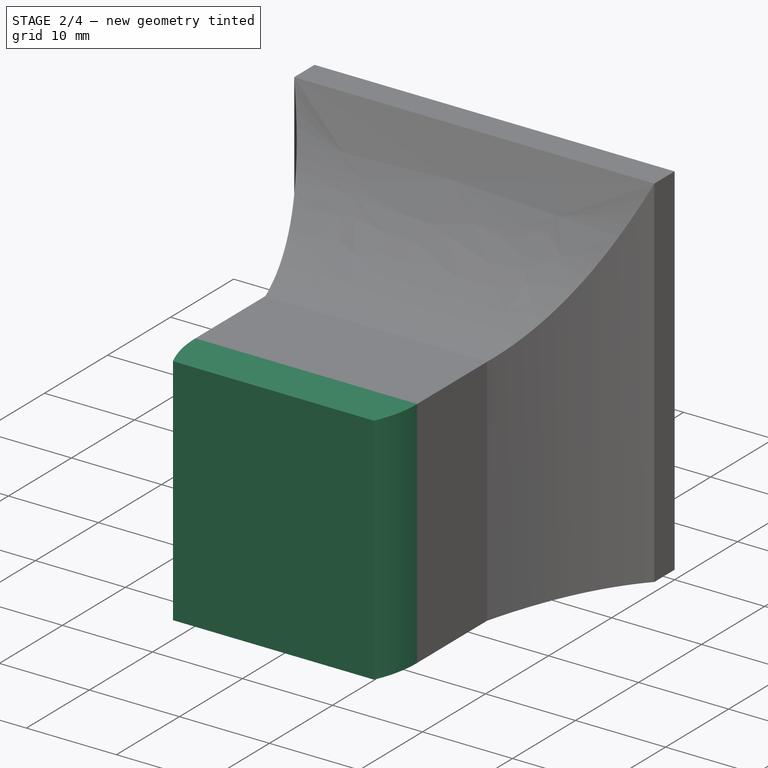
[diagram: stage 2 of 4 — iso view after this stage's code; geometry added in this stage tinted green]
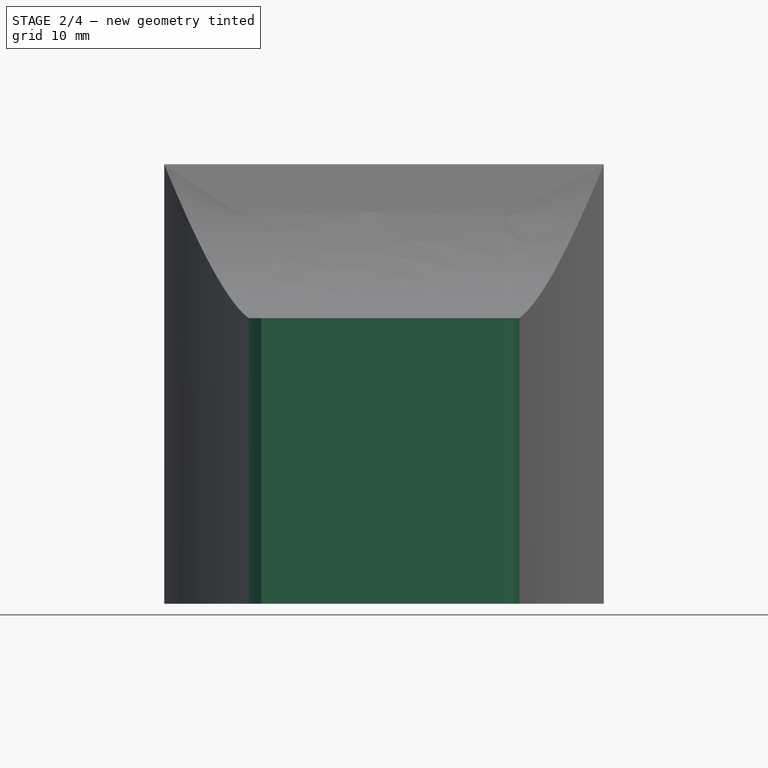
[diagram: stage 2 of 4 — front view after this stage's code; geometry added in this stage tinted green]
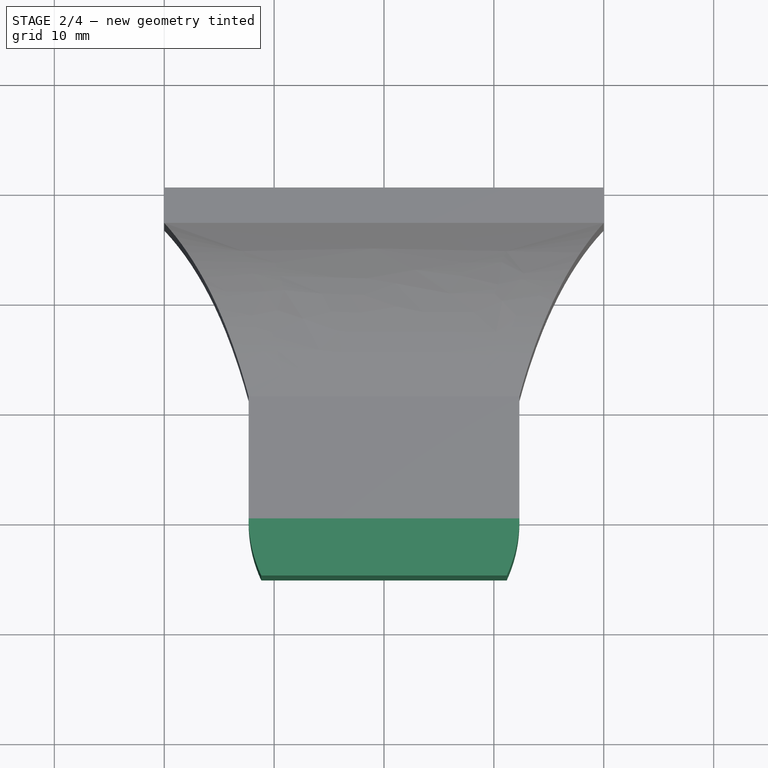
[diagram: stage 2 of 4 — top view after this stage's code; geometry added in this stage tinted green]
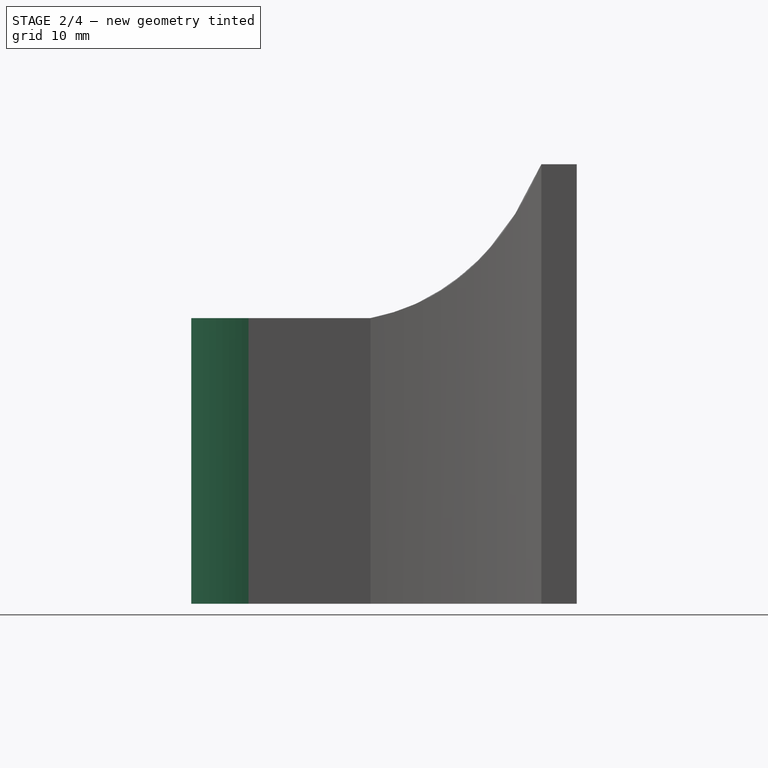
[diagram: stage 2 of 4 — right view after this stage's code; geometry added in this stage tinted green]
FEATURE [PartDesign::Pad] Pad002  label="OutsideHeatsink_"
  BaseFeature = -> Pad004
  Length = 26
  Length2 = 100
  Placement = pos=(0,0,0) rot=(1,0,0;1.5708rad)
  Profile = -> Sketch004
  Type = 0
  expr: Length = Spreadsheet.HeatsinkHeight
FEATURE [PartDesign::Pocket] Pocket  label="InsideInlet_"
  BaseFeature = -> Pad002
  Length = 2
  Length2 = 100
  Placement = pos=(0,0,0) rot=(1,0,0;1.5708rad)
  Profile = -> Sketch006
  Reversed = true
  Type = 0
  expr: Length = OutsideInlet_.Length - Spreadsheet.WallThickness
FEATURE [PartDesign::SubtractiveLoft] SubtractiveLoft
  BaseFeature = -> Pocket
  Closed = false
  Placement = pos=(0,0,0) rot=(1,0,0;1.5708rad)
  Profile = -> Sketch005
  Ruled = false
  Sections = -> [Sketch013,Sketch009]
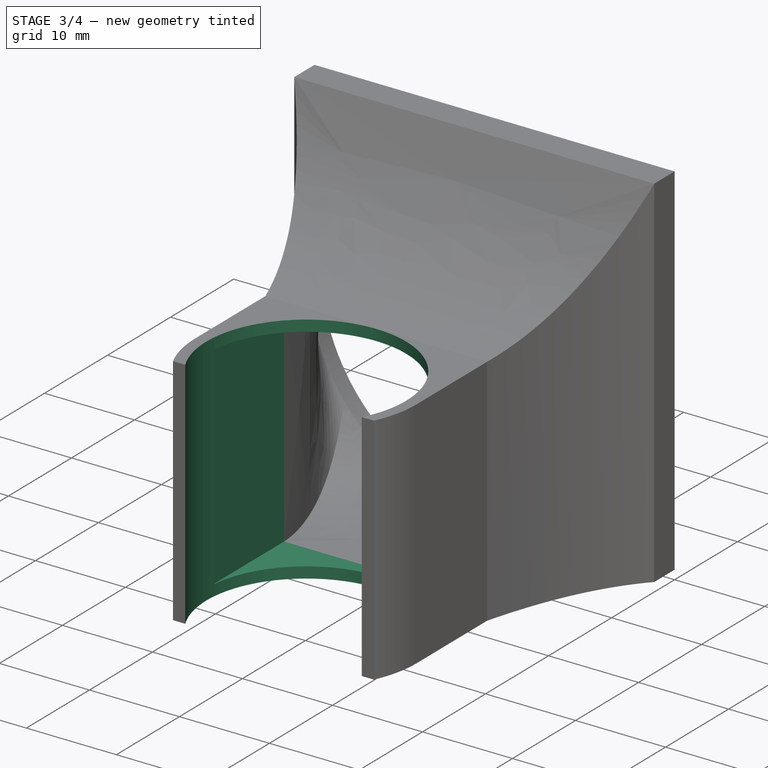
[diagram: stage 3 of 4 — iso view after this stage's code; geometry added in this stage tinted green]
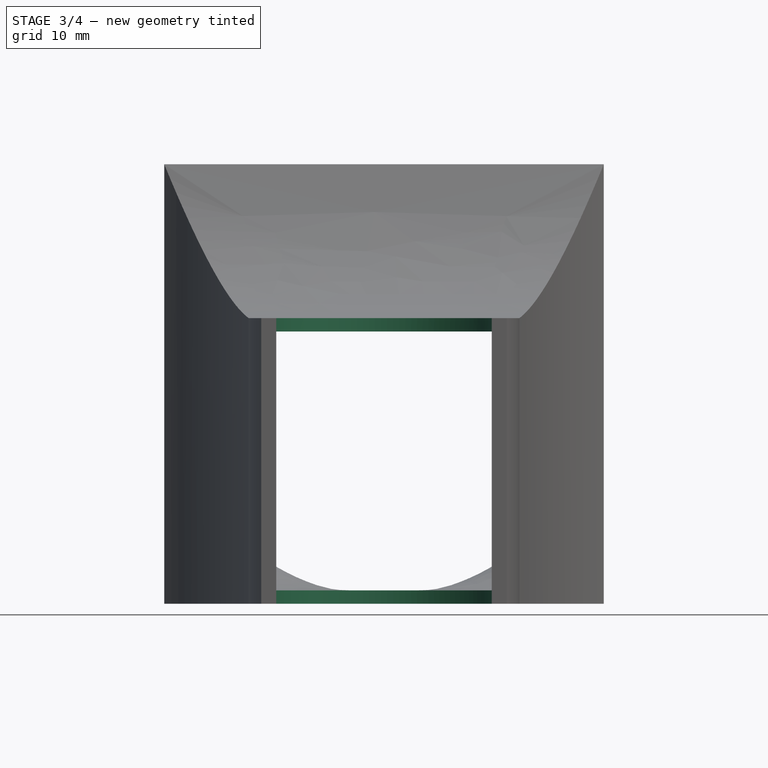
[diagram: stage 3 of 4 — front view after this stage's code; geometry added in this stage tinted green]
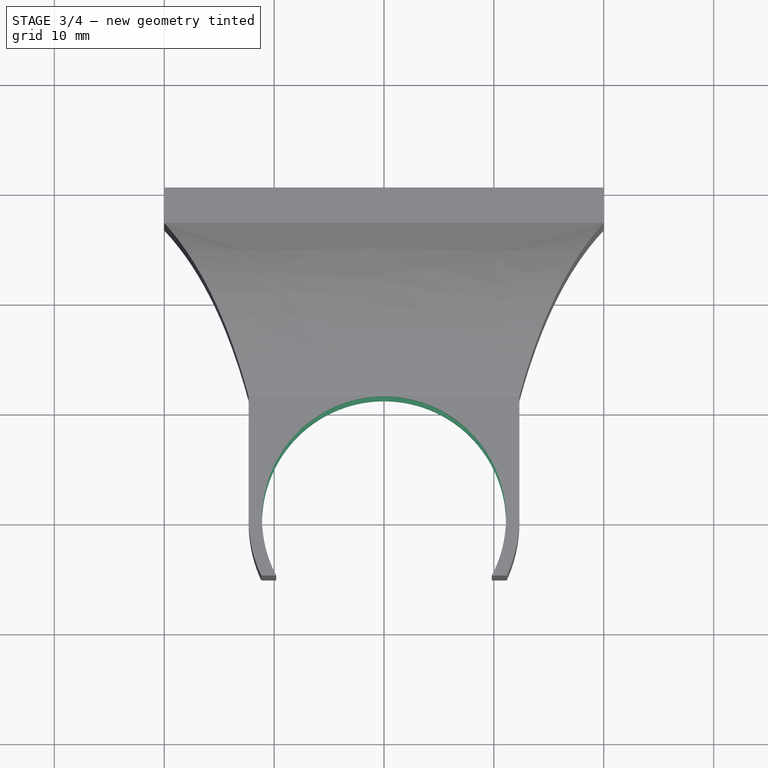
[diagram: stage 3 of 4 — top view after this stage's code; geometry added in this stage tinted green]
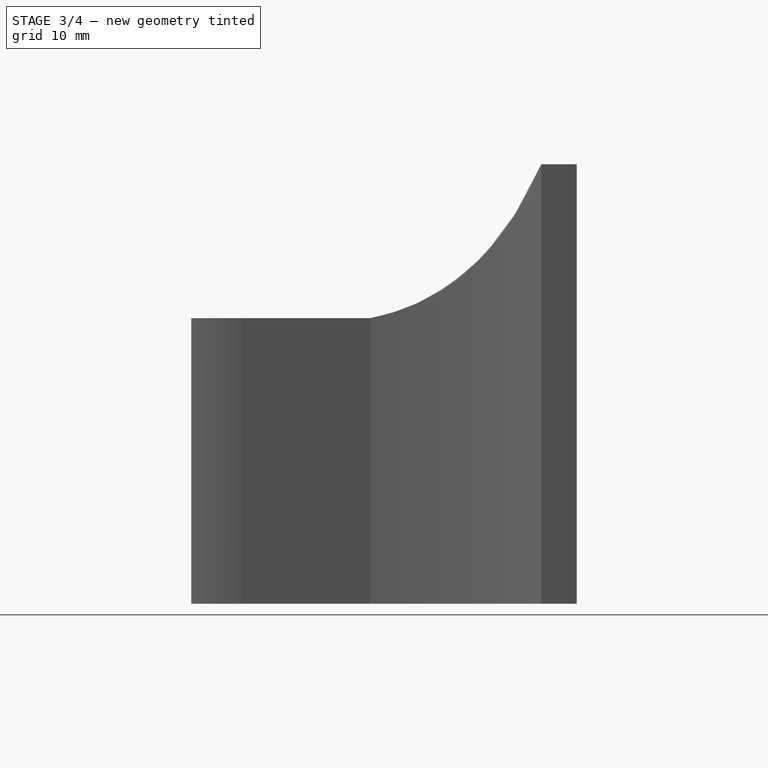
[diagram: stage 3 of 4 — right view after this stage's code; geometry added in this stage tinted green]
FEATURE [PartDesign::Pocket] Pocket001  label="InsideOutlet_"
  BaseFeature = -> SubtractiveLoft
  Length = 11.1
  Length2 = 100
  Placement = pos=(0,0,0) rot=(1,0,0;1.5708rad)
  Profile = -> Sketch017
  Reversed = true
  Type = 0
  expr: Length = OutsideOutlet_.Length
FEATURE [PartDesign::Pocket] Pocket002  label="InsideHeatsink_"
  BaseFeature = -> Pocket001
  Length = 5
  Length2 = 100
  Placement = pos=(0,0,0) rot=(1,0,0;1.5708rad)
  Profile = -> Sketch010
  Reversed = true
  Type = 1
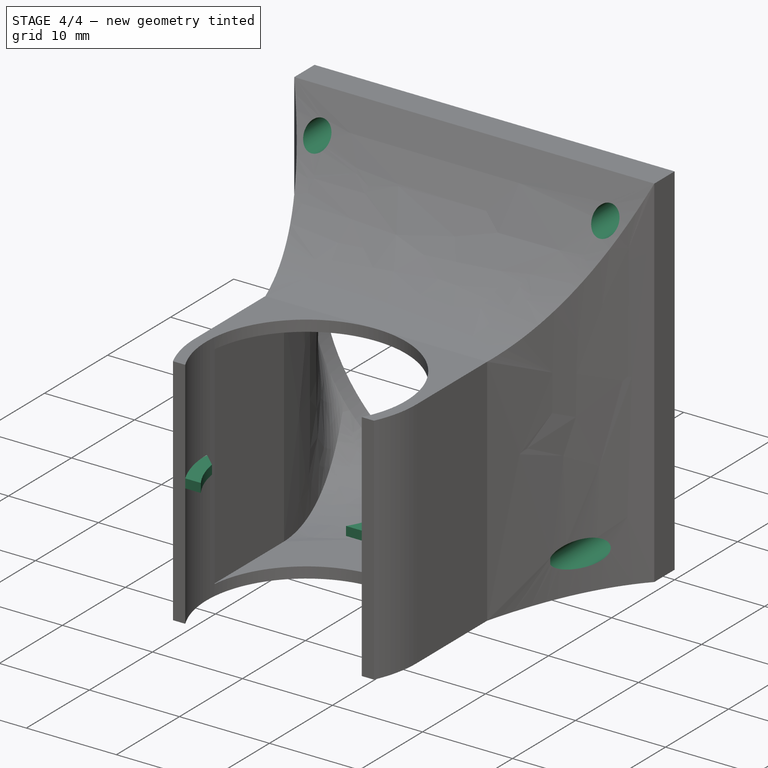
[diagram: stage 4 of 4 — iso view after this stage's code; geometry added in this stage tinted green]
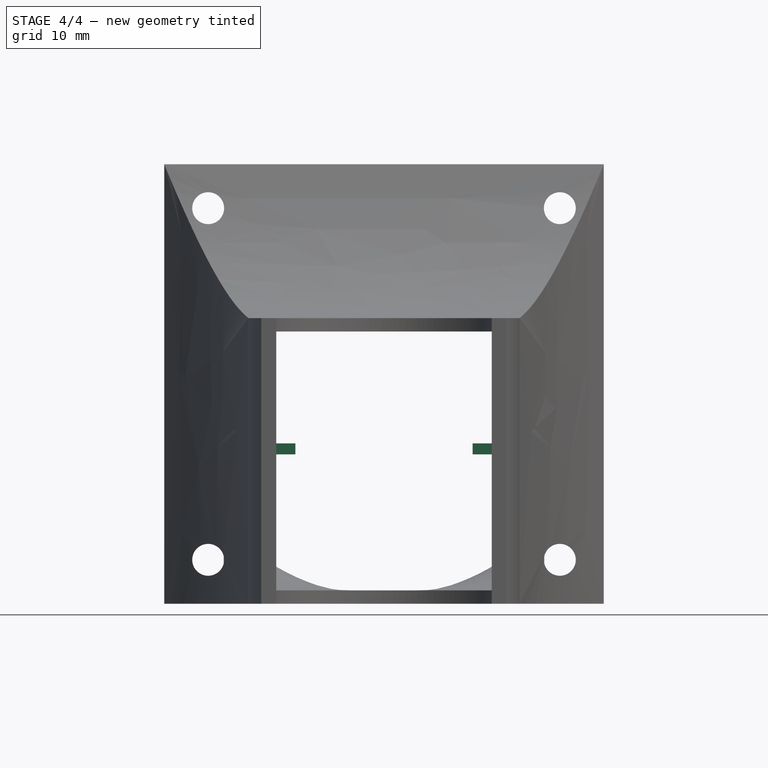
[diagram: stage 4 of 4 — front view after this stage's code; geometry added in this stage tinted green]
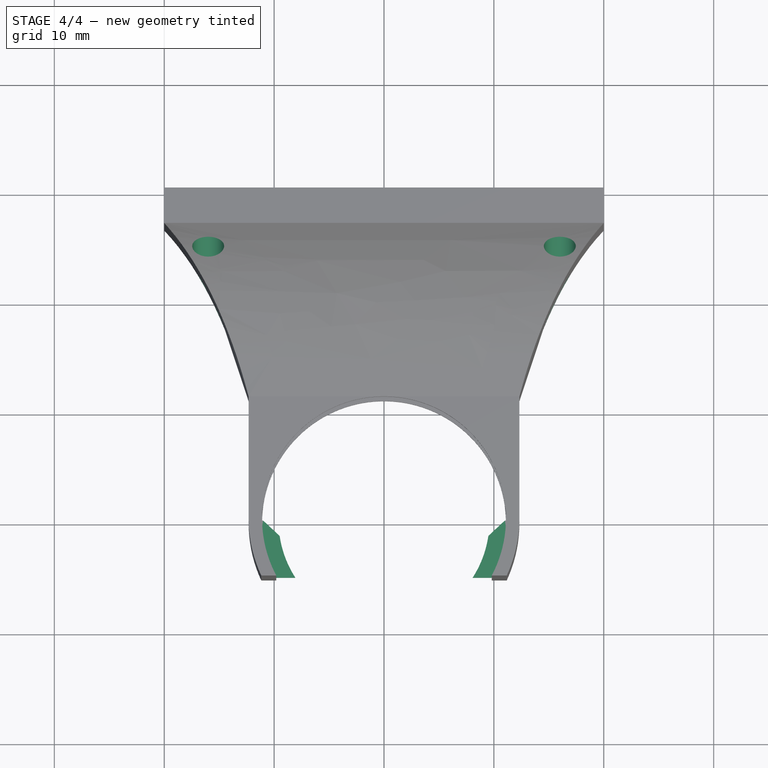
[diagram: stage 4 of 4 — top view after this stage's code; geometry added in this stage tinted green]
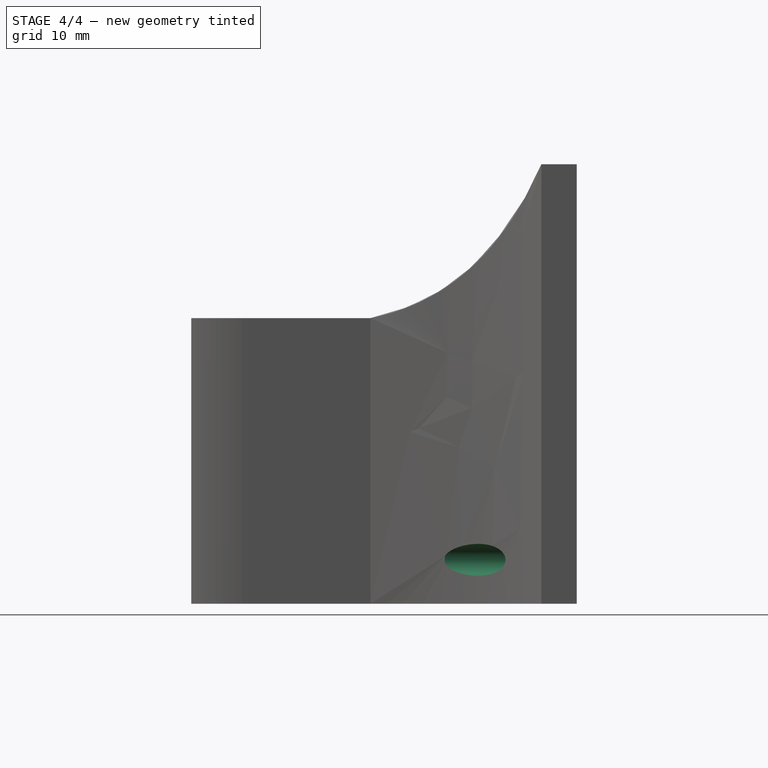
[diagram: stage 4 of 4 — right view after this stage's code; geometry added in this stage tinted green]
FEATURE [PartDesign::Pad] Pad003  label="Grooves_"
  BaseFeature = -> Pocket002
  Length = 1
  Length2 = 100
  Placement = pos=(0,0,0) rot=(1,0,0;1.5708rad)
  Profile = -> Sketch012
  Refine = true
  Type = 0
FEATURE [PartDesign::Chamfer] Chamfer
  Base = -> Pad003 [Edge93,Edge80]
  BaseFeature = -> Pad003
  Placement = pos=(0,0,0) rot=(1,0,0;1.5708rad)
  Size = 1.4
FEATURE [PartDesign::Pocket] Pocket003  label="ScrewHoles_"
  BaseFeature = -> Chamfer
  Length = 12
  Length2 = 100
  Placement = pos=(0,0,0) rot=(1,0,0;1.5708rad)
  Profile = -> Sketch011
  Reversed = true
  Type = 0
  expr: Length = Spreadsheet.FrameLength + Spreadsheet.MiddleLength
FEATURE [PartDesign::Body] Body
  Group = -> [Sketch,Sketch001,Sketch002,Sketch015,Sketch003,Sketch004,Sketch006,Sketch005,Sketch013,Sketch009,Sketch017,Sketch010,Sketch012,Sketch011,Pad,AdditiveLoft,Pad004,Pad002,Pocket,SubtractiveLoft,Pocket001,Pocket002,Pad003,Chamfer,Pocket003]
  Origin = -> Origin001
FEATURE [App::Part] Part
  Group = -> [Body]
  License = CC BY 3.0
  LicenseURL = http://creativecommons.org/licenses/by/3.0/
  Origin = -> Origin
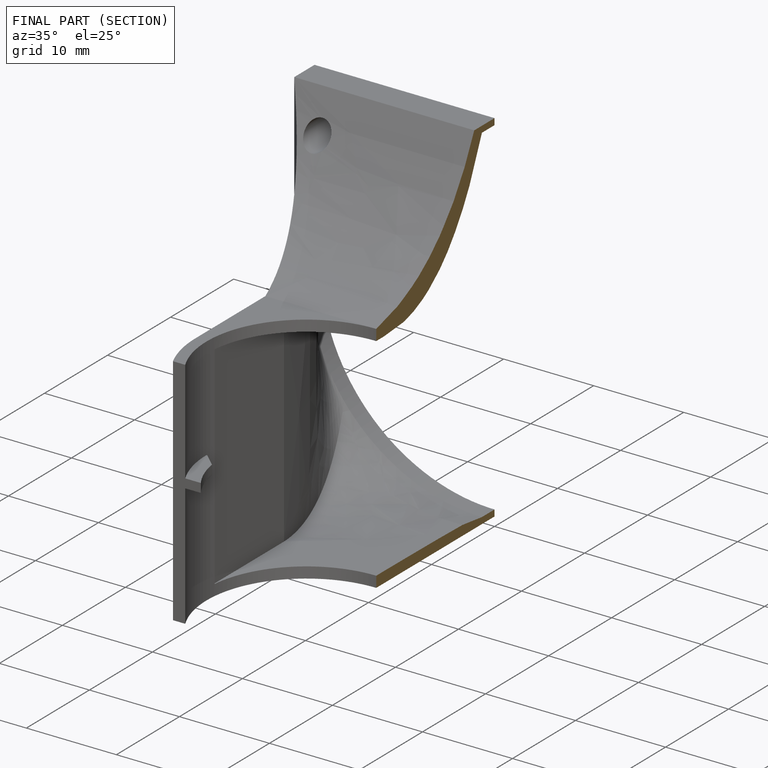
[diagram: finished part — half-section view (interior)]
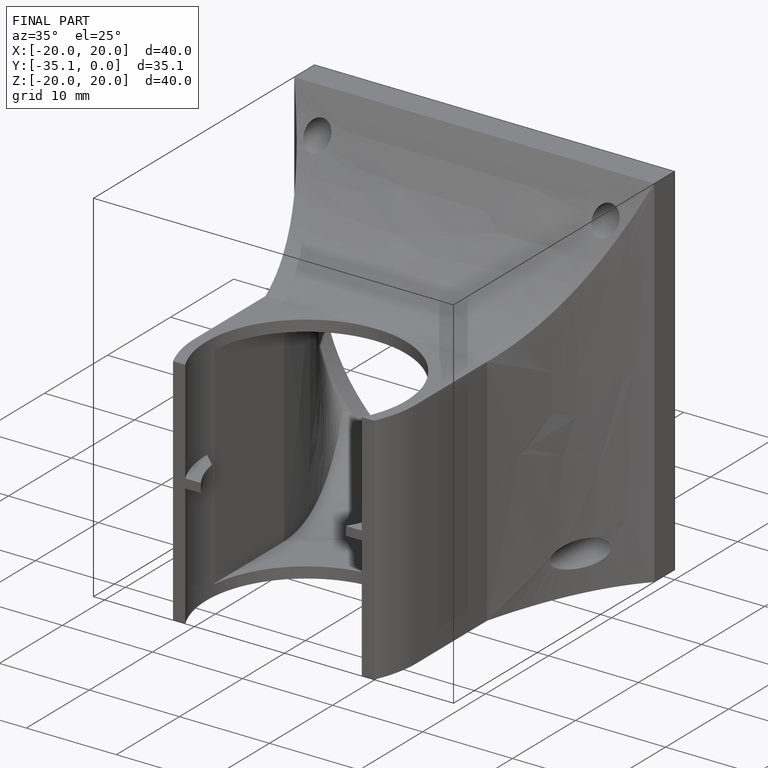
[diagram: finished part — iso view with bounding-box wireframe]
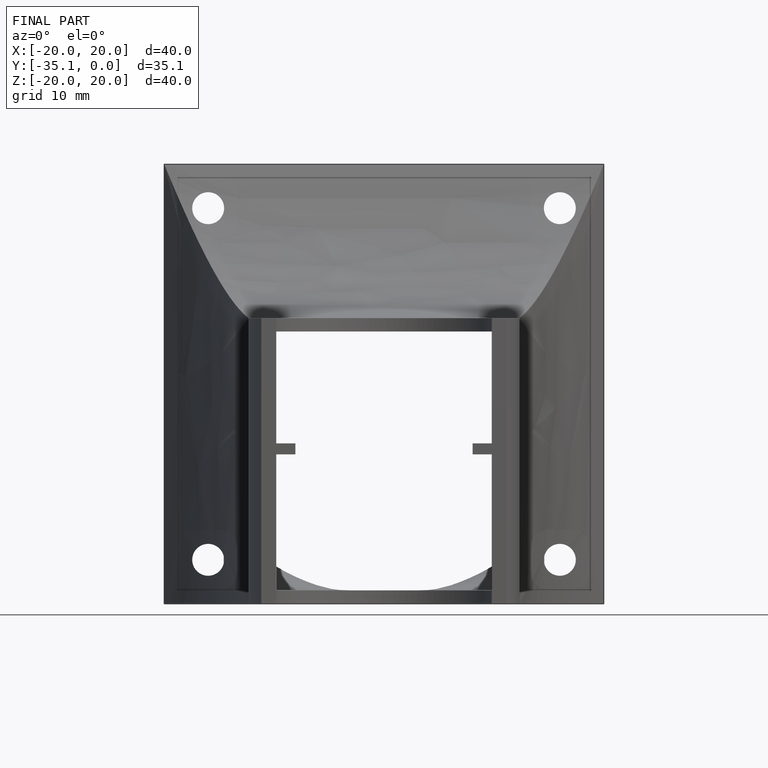
[diagram: finished part — front view with bounding-box wireframe]
